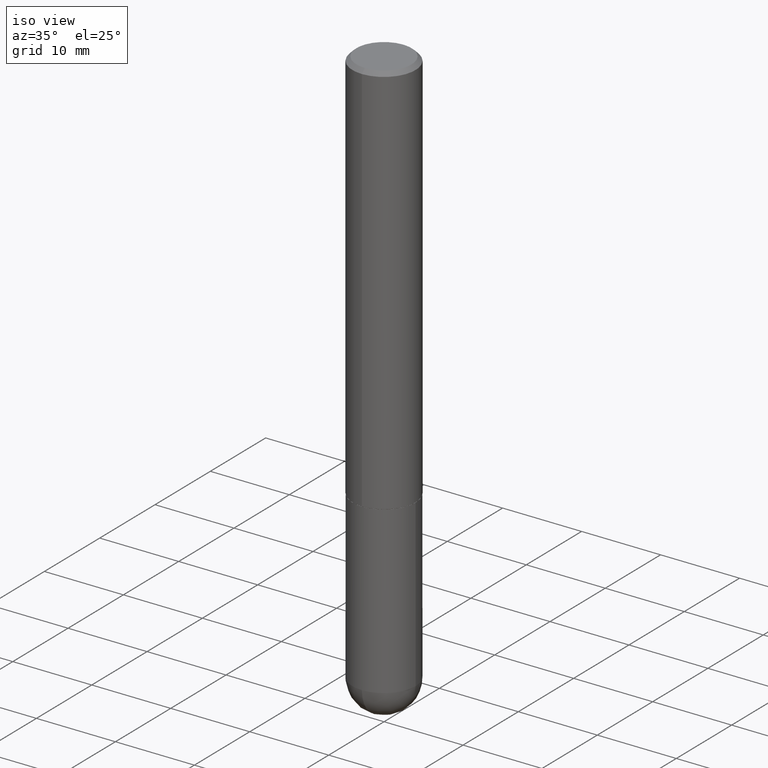
[diagram: clean part render]
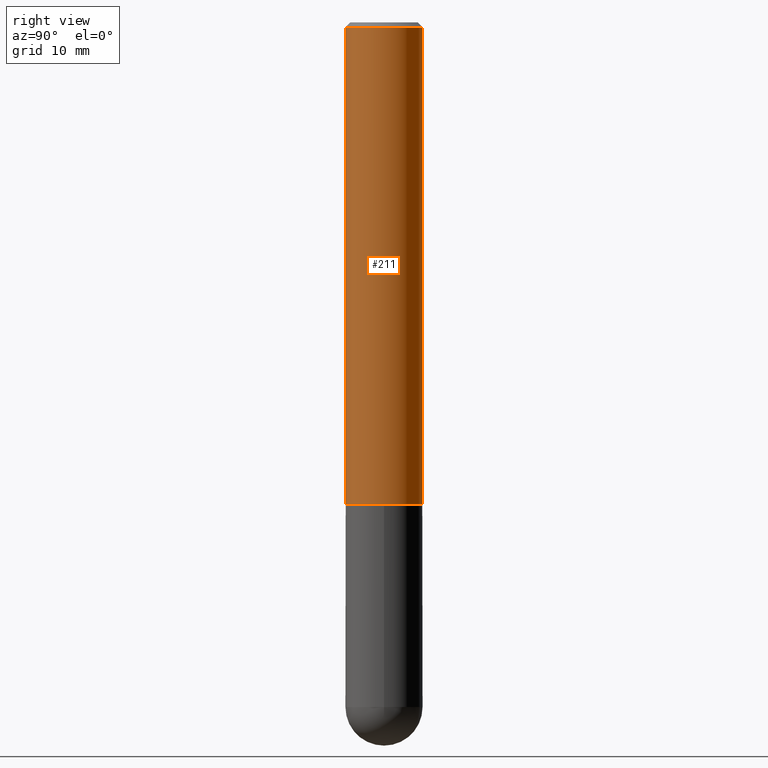
[diagram: tour spotlight — one face highlighted and labeled with its STEP entity id]
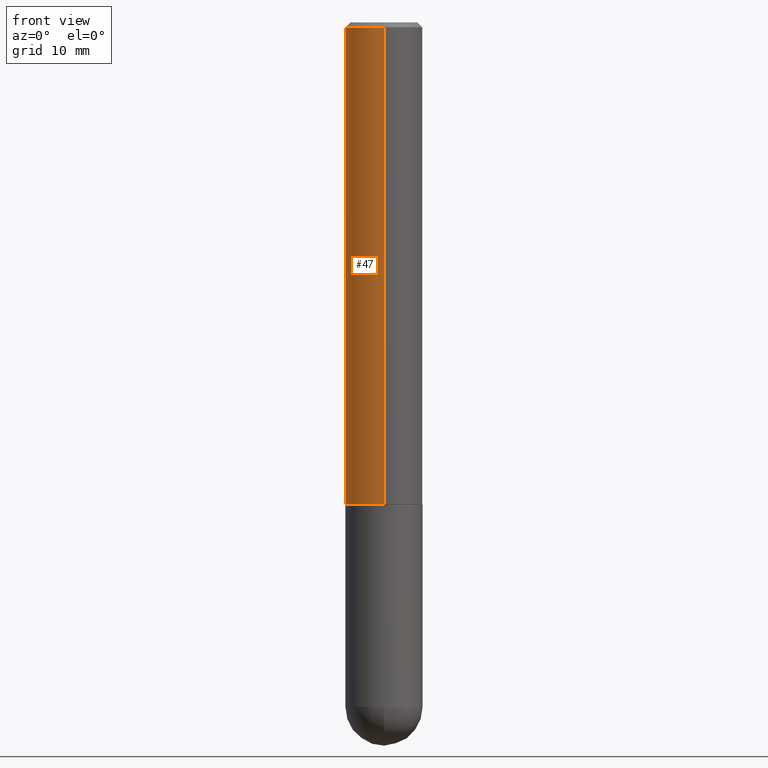
[diagram: tour spotlight — one face highlighted and labeled with its STEP entity id]
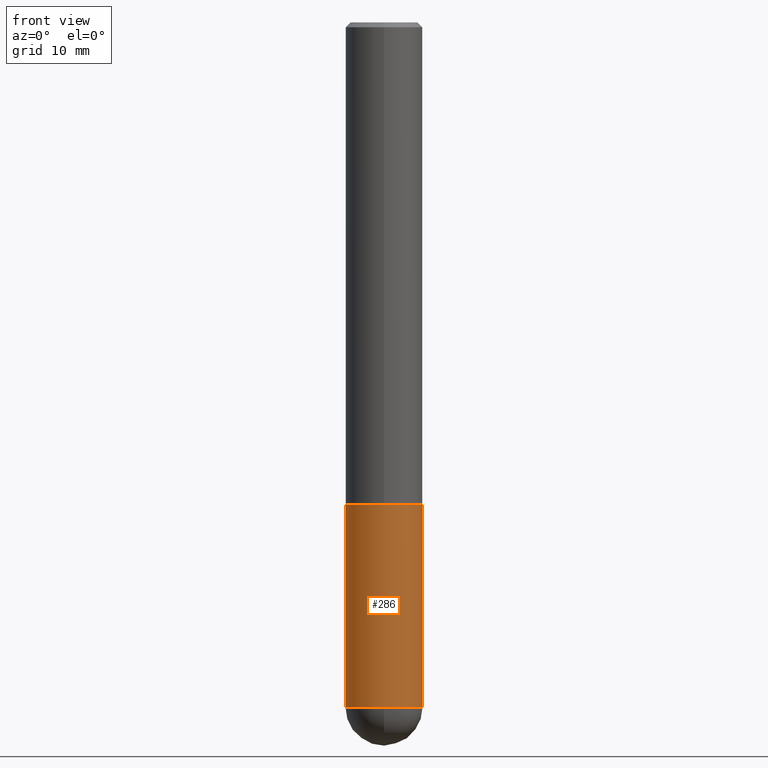
[diagram: tour spotlight — one face highlighted and labeled with its STEP entity id]
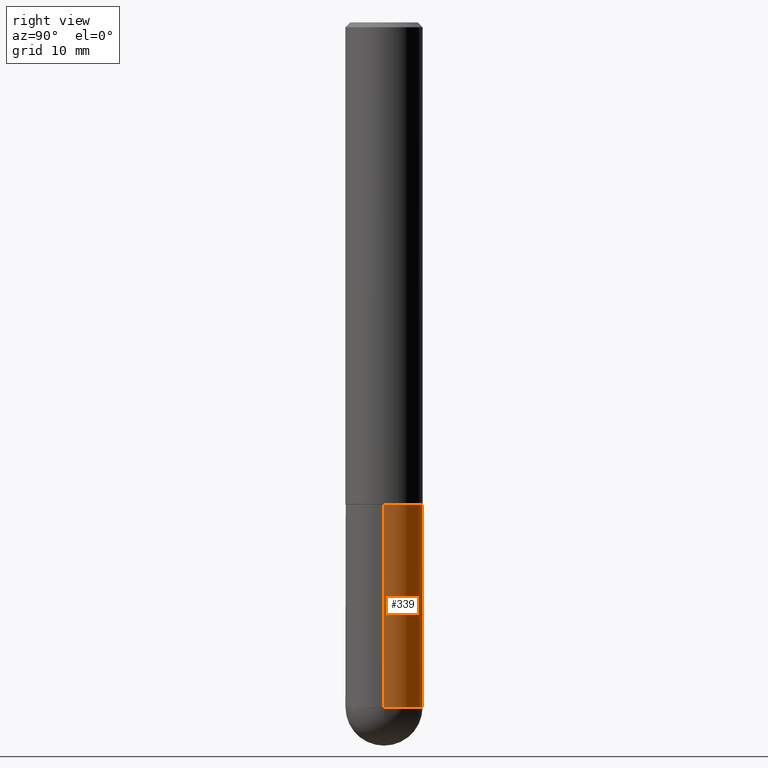
[diagram: tour spotlight — one face highlighted and labeled with its STEP entity id]
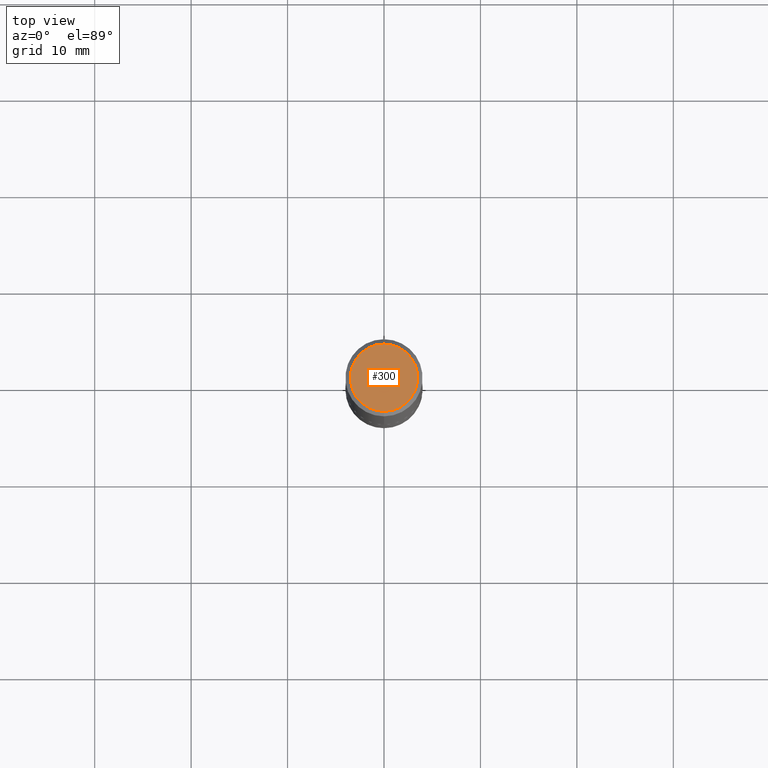
[diagram: tour spotlight — one face highlighted and labeled with its STEP entity id]
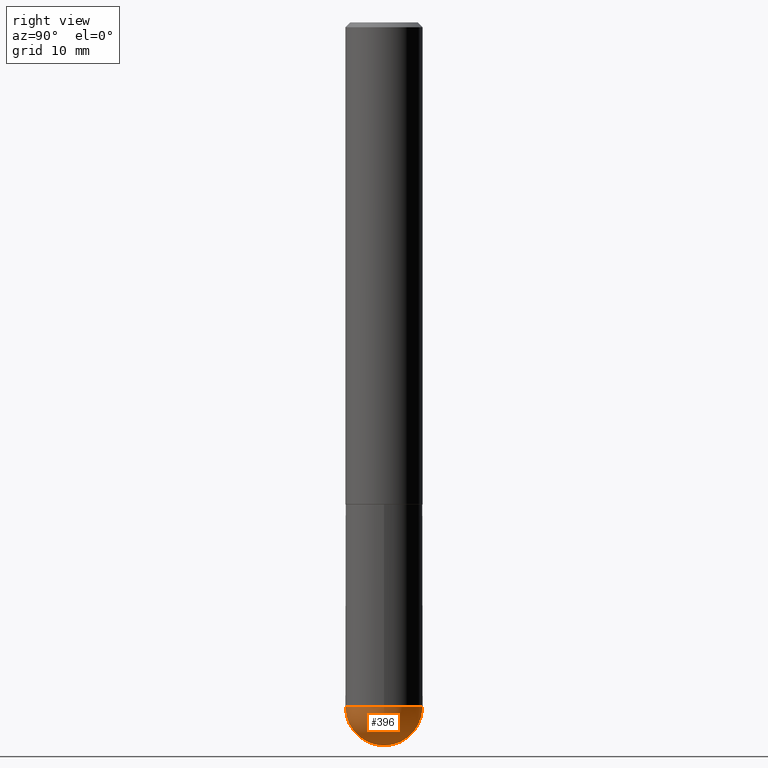
[diagram: tour spotlight — one face highlighted and labeled with its STEP entity id]
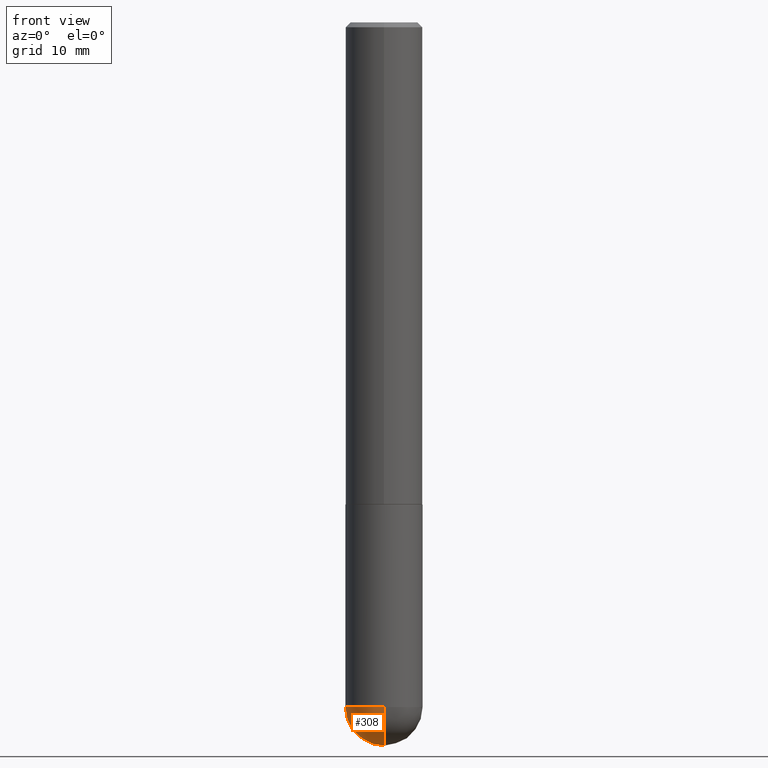
[diagram: tour spotlight — one face highlighted and labeled with its STEP entity id]
A machine part: a face-by-face anatomy tour. The part has 13 B-rep faces; the first image is the clean iso view, then the 7 largest visible faces are spotlighted one at a time (largest first), each with its STEP entity span.

Face 1 — right view, entity #211. In plain terms, the highlighted cylindrical surface (partial cylindrical patch) has radius 4.0005 mm, axis along (-0, 0, 1).
Definition (entity closure, byte-faithful):
#7 = CARTESIAN_POINT ( 'NONE',  ( -1.080528434649015385E-15, -0.1575000000000000289, -0.01999999999999948000 ) ) ;
#10 = EDGE_CURVE ( 'NONE', #254, #408, #122, .T. ) ;
#11 = DIRECTION ( 'NONE',  ( -6.982962677686265922E-15, -1.000000000000000000, 3.469013325287948560E-15 ) ) ;
#18 = FACE_OUTER_BOUND ( 'NONE', #290, .T. ) ;
#25 = CARTESIAN_POINT ( 'NONE',  ( -1.099816621735540149E-15, -0.1575000000000071065, -1.967499999999999138 ) ) ;
#40 = CARTESIAN_POINT ( 'NONE',  ( 4.819090409256129249E-29, -6.858562176490512022E-15, -1.967499999999999805 ) ) ;
#54 = LINE ( 'NONE', #243, #236 ) ;
#55 = AXIS2_PLACEMENT_3D ( 'NONE', #40, #268, #11 ) ;
#58 = CARTESIAN_POINT ( 'NONE',  ( 4.898694189841054360E-31, -6.971854817271180342E-17, -0.02000000000000003164 ) ) ;
#74 = AXIS2_PLACEMENT_3D ( 'NONE', #213, #277, #145 ) ;
#122 = CIRCLE ( 'NONE', #55, 0.1575000000000002232 ) ;
#127 = VECTOR ( 'NONE', #402, 39.37007874015748143 ) ;
#131 = ORIENTED_EDGE ( 'NONE', *, *, #293, .F. ) ;
#133 = VERTEX_POINT ( 'NONE', #7 ) ;
#145 = DIRECTION ( 'NONE',  ( -6.982962677686265922E-15, -1.000000000000000000, 3.485927408635584895E-15 ) ) ;
#147 = LINE ( 'NONE', #183, #127 ) ;
#164 = DIRECTION ( 'NONE',  ( -6.982962677686265922E-15, -1.000000000000000000, 3.496114991891766760E-15 ) ) ;
#183 = CARTESIAN_POINT ( 'NONE',  ( 1.119104808822158195E-15, 0.1575000000000000844, -5.490335668601049435E-16 ) ) ;
#189 = ORIENTED_EDGE ( 'NONE', *, *, #10, .T. ) ;
#211 = ADVANCED_FACE ( 'NONE', ( #18 ), #342, .T. ) ;
#213 = CARTESIAN_POINT ( 'NONE',  ( 0.000000000000000000, 0.000000000000000000, 0.000000000000000000 ) ) ;
#236 = VECTOR ( 'NONE', #349, 39.37007874015748143 ) ;
#238 = AXIS2_PLACEMENT_3D ( 'NONE', #58, #288, #164 ) ;
#243 = CARTESIAN_POINT ( 'NONE',  ( -1.099816621735587480E-15, -0.1575000000000000844, 5.490335668601049435E-16 ) ) ;
#247 = EDGE_CURVE ( 'NONE', #408, #287, #147, .T. ) ;
#254 = VERTEX_POINT ( 'NONE', #25 ) ;
#261 = ORIENTED_EDGE ( 'NONE', *, *, #247, .T. ) ;
#268 = DIRECTION ( 'NONE',  ( -2.449347094920523449E-29, 3.485927408635585290E-15, 1.000000000000000000 ) ) ;
#269 = CIRCLE ( 'NONE', #238, 0.1574999999999999456 ) ;
#277 = DIRECTION ( 'NONE',  ( -2.449347094920523449E-29, 3.485927408635585290E-15, 1.000000000000000000 ) ) ;
#279 = CARTESIAN_POINT ( 'NONE',  ( 1.099816621735586889E-15, 0.1574999999999998901, -0.02000000000000057981 ) ) ;
#287 = VERTEX_POINT ( 'NONE', #279 ) ;
#288 = DIRECTION ( 'NONE',  ( -2.449347094920523449E-29, 3.485927408635585290E-15, 1.000000000000000000 ) ) ;
#290 = EDGE_LOOP ( 'NONE', ( #189, #261, #292, #131 ) ) ;
#292 = ORIENTED_EDGE ( 'NONE', *, *, #365, .F. ) ;
#293 = EDGE_CURVE ( 'NONE', #254, #133, #54, .T. ) ;
#334 = CARTESIAN_POINT ( 'NONE',  ( 1.119104808822183241E-15, 0.1574999999999933675, -1.967500000000000249 ) ) ;
#342 = CYLINDRICAL_SURFACE ( 'NONE', #74, 0.1575000000000000844 ) ;
#349 = DIRECTION ( 'NONE',  ( -2.449347094920523449E-29, 3.485927408635585290E-15, 1.000000000000000000 ) ) ;
#365 = EDGE_CURVE ( 'NONE', #133, #287, #269, .T. ) ;
#402 = DIRECTION ( 'NONE',  ( -2.449347094920523449E-29, 3.485927408635585290E-15, 1.000000000000000000 ) ) ;
#408 = VERTEX_POINT ( 'NONE', #334 ) ;

Face 2 — front view, entity #47. In plain terms, the highlighted cylindrical surface (partial cylindrical patch) has radius 4.0005 mm, axis along (-0, 0, 1).
Definition (entity closure, byte-faithful):
#7 = CARTESIAN_POINT ( 'NONE',  ( -1.080528434649015385E-15, -0.1575000000000000289, -0.01999999999999948000 ) ) ;
#25 = CARTESIAN_POINT ( 'NONE',  ( -1.099816621735540149E-15, -0.1575000000000071065, -1.967499999999999138 ) ) ;
#45 = EDGE_LOOP ( 'NONE', ( #227, #224, #230, #99 ) ) ;
#47 = ADVANCED_FACE ( 'NONE', ( #70 ), #270, .T. ) ;
#54 = LINE ( 'NONE', #243, #236 ) ;
#70 = FACE_OUTER_BOUND ( 'NONE', #45, .T. ) ;
#76 = CARTESIAN_POINT ( 'NONE',  ( 4.819090409256129249E-29, -6.858562176490512022E-15, -1.967499999999999805 ) ) ;
#81 = AXIS2_PLACEMENT_3D ( 'NONE', #76, #150, #114 ) ;
#85 = DIRECTION ( 'NONE',  ( -6.982962677686265922E-15, -1.000000000000000000, 3.496114991891766760E-15 ) ) ;
#95 = AXIS2_PLACEMENT_3D ( 'NONE', #301, #297, #111 ) ;
#99 = ORIENTED_EDGE ( 'NONE', *, *, #280, .F. ) ;
#111 = DIRECTION ( 'NONE',  ( -6.982962677686265922E-15, -1.000000000000000000, 3.485927408635584895E-15 ) ) ;
#114 = DIRECTION ( 'NONE',  ( -6.982962677686265922E-15, -1.000000000000000000, 3.469013325287948560E-15 ) ) ;
#127 = VECTOR ( 'NONE', #402, 39.37007874015748143 ) ;
#133 = VERTEX_POINT ( 'NONE', #7 ) ;
#147 = LINE ( 'NONE', #183, #127 ) ;
#150 = DIRECTION ( 'NONE',  ( -2.449347094920523449E-29, 3.485927408635585290E-15, 1.000000000000000000 ) ) ;
#182 = AXIS2_PLACEMENT_3D ( 'NONE', #376, #378, #85 ) ;
#183 = CARTESIAN_POINT ( 'NONE',  ( 1.119104808822158195E-15, 0.1575000000000000844, -5.490335668601049435E-16 ) ) ;
#203 = EDGE_CURVE ( 'NONE', #408, #254, #265, .T. ) ;
#224 = ORIENTED_EDGE ( 'NONE', *, *, #203, .T. ) ;
#227 = ORIENTED_EDGE ( 'NONE', *, *, #247, .F. ) ;
#230 = ORIENTED_EDGE ( 'NONE', *, *, #293, .T. ) ;
#236 = VECTOR ( 'NONE', #349, 39.37007874015748143 ) ;
#243 = CARTESIAN_POINT ( 'NONE',  ( -1.099816621735587480E-15, -0.1575000000000000844, 5.490335668601049435E-16 ) ) ;
#247 = EDGE_CURVE ( 'NONE', #408, #287, #147, .T. ) ;
#254 = VERTEX_POINT ( 'NONE', #25 ) ;
#255 = CIRCLE ( 'NONE', #182, 0.1574999999999999456 ) ;
#265 = CIRCLE ( 'NONE', #81, 0.1575000000000002232 ) ;
#270 = CYLINDRICAL_SURFACE ( 'NONE', #95, 0.1575000000000000844 ) ;
#279 = CARTESIAN_POINT ( 'NONE',  ( 1.099816621735586889E-15, 0.1574999999999998901, -0.02000000000000057981 ) ) ;
#280 = EDGE_CURVE ( 'NONE', #287, #133, #255, .T. ) ;
#287 = VERTEX_POINT ( 'NONE', #279 ) ;
#293 = EDGE_CURVE ( 'NONE', #254, #133, #54, .T. ) ;
#297 = DIRECTION ( 'NONE',  ( -2.449347094920523449E-29, 3.485927408635585290E-15, 1.000000000000000000 ) ) ;
#301 = CARTESIAN_POINT ( 'NONE',  ( 0.000000000000000000, 0.000000000000000000, 0.000000000000000000 ) ) ;
#334 = CARTESIAN_POINT ( 'NONE',  ( 1.119104808822183241E-15, 0.1574999999999933675, -1.967500000000000249 ) ) ;
#349 = DIRECTION ( 'NONE',  ( -2.449347094920523449E-29, 3.485927408635585290E-15, 1.000000000000000000 ) ) ;
#376 = CARTESIAN_POINT ( 'NONE',  ( 4.898694189841054360E-31, -6.971854817271180342E-17, -0.02000000000000003164 ) ) ;
#378 = DIRECTION ( 'NONE',  ( -2.449347094920523449E-29, 3.485927408635585290E-15, 1.000000000000000000 ) ) ;
#402 = DIRECTION ( 'NONE',  ( -2.449347094920523449E-29, 3.485927408635585290E-15, 1.000000000000000000 ) ) ;
#408 = VERTEX_POINT ( 'NONE', #334 ) ;

Face 3 — front view, entity #286. In plain terms, the highlighted cylindrical surface (partial cylindrical patch) has radius 4.0005 mm, axis along (-0, 0, 1).
Definition (entity closure, byte-faithful):
#19 = CARTESIAN_POINT ( 'NONE',  ( -0.1575000000000000011, 1.119104808822157801E-15, -7.747322767151475583E-30 ) ) ;
#27 = ORIENTED_EDGE ( 'NONE', *, *, #129, .T. ) ;
#30 = ORIENTED_EDGE ( 'NONE', *, *, #83, .T. ) ;
#38 = DIRECTION ( 'NONE',  ( -2.445468806185136877E-29, 3.491481338843145188E-15, 1.000000000000000000 ) ) ;
#43 = DIRECTION ( 'NONE',  ( -2.445468806185136597E-29, 3.491481338843145583E-15, 1.000000000000000000 ) ) ;
#50 = DIRECTION ( 'NONE',  ( -2.445468806185136597E-29, 3.491481338843145583E-15, 1.000000000000000000 ) ) ;
#60 = DIRECTION ( 'NONE',  ( 1.000000000000000000, -6.982962677686261977E-15, 0.000000000000000000 ) ) ;
#62 = VERTEX_POINT ( 'NONE', #337 ) ;
#65 = ORIENTED_EDGE ( 'NONE', *, *, #375, .T. ) ;
#67 = AXIS2_PLACEMENT_3D ( 'NONE', #232, #364, #178 ) ;
#68 = CARTESIAN_POINT ( 'NONE',  ( 6.835818953929311707E-29, -9.759737786468243605E-15, -2.795299999999999674 ) ) ;
#75 = CARTESIAN_POINT ( 'NONE',  ( -0.1575000000000000011, -7.197254592168330052E-15, -1.968499999999999694 ) ) ;
#79 = DIRECTION ( 'NONE',  ( 1.000000000000000000, -6.982962677686265922E-15, 4.876176775795935232E-29 ) ) ;
#83 = EDGE_CURVE ( 'NONE', #62, #264, #391, .T. ) ;
#87 = DIRECTION ( 'NONE',  ( -2.445468806185136597E-29, 3.491481338843145583E-15, 1.000000000000000000 ) ) ;
#91 = VERTEX_POINT ( 'NONE', #75 ) ;
#96 = VERTEX_POINT ( 'NONE', #304 ) ;
#113 = CARTESIAN_POINT ( 'NONE',  ( -1.119104808822091931E-15, -0.1575000000000101319, -2.795299999999998786 ) ) ;
#120 = DIRECTION ( 'NONE',  ( -2.445468806185136877E-29, 3.491481338843145188E-15, 1.000000000000000000 ) ) ;
#126 = VERTEX_POINT ( 'NONE', #399 ) ;
#128 = ORIENTED_EDGE ( 'NONE', *, *, #166, .F. ) ;
#129 = EDGE_CURVE ( 'NONE', #126, #96, #361, .T. ) ;
#142 = EDGE_CURVE ( 'NONE', #91, #96, #379, .T. ) ;
#144 = VECTOR ( 'NONE', #38, 39.37007874015748143 ) ;
#146 = LINE ( 'NONE', #19, #311 ) ;
#156 = AXIS2_PLACEMENT_3D ( 'NONE', #68, #43, #390 ) ;
#166 = EDGE_CURVE ( 'NONE', #62, #91, #146, .T. ) ;
#178 = DIRECTION ( 'NONE',  ( 1.000000000000000000, -6.982962677686268288E-15, 0.000000000000000000 ) ) ;
#186 = CIRCLE ( 'NONE', #221, 0.1575000000000000011 ) ;
#195 = CARTESIAN_POINT ( 'NONE',  ( 0.1575000000000000011, -1.099816621735586889E-15, 7.679978421878598033E-30 ) ) ;
#208 = FACE_OUTER_BOUND ( 'NONE', #383, .T. ) ;
#216 = CARTESIAN_POINT ( 'NONE',  ( 0.000000000000000000, 0.000000000000000000, 0.000000000000000000 ) ) ;
#221 = AXIS2_PLACEMENT_3D ( 'NONE', #380, #87, #60 ) ;
#232 = CARTESIAN_POINT ( 'NONE',  ( 4.813905344975440714E-29, -6.872981015512730918E-15, -1.968499999999999694 ) ) ;
#235 = ORIENTED_EDGE ( 'NONE', *, *, #142, .F. ) ;
#244 = CYLINDRICAL_SURFACE ( 'NONE', #291, 0.1575000000000000011 ) ;
#264 = VERTEX_POINT ( 'NONE', #113 ) ;
#286 = ADVANCED_FACE ( 'NONE', ( #208 ), #244, .T. ) ;
#291 = AXIS2_PLACEMENT_3D ( 'NONE', #216, #50, #79 ) ;
#304 = CARTESIAN_POINT ( 'NONE',  ( 0.1575000000000000011, -7.972797637248318399E-15, -1.968499999999999694 ) ) ;
#311 = VECTOR ( 'NONE', #120, 39.37007874015748143 ) ;
#337 = CARTESIAN_POINT ( 'NONE',  ( -0.1575000000000000011, -7.197254592168330052E-15, -2.795299999999999674 ) ) ;
#361 = LINE ( 'NONE', #195, #144 ) ;
#364 = DIRECTION ( 'NONE',  ( -2.445468806185136597E-29, 3.491481338843145583E-15, 1.000000000000000000 ) ) ;
#375 = EDGE_CURVE ( 'NONE', #264, #126, #186, .T. ) ;
#379 = CIRCLE ( 'NONE', #67, 0.1575000000000000011 ) ;
#380 = CARTESIAN_POINT ( 'NONE',  ( 6.835818953929311707E-29, -9.759737786468243605E-15, -2.795299999999999674 ) ) ;
#383 = EDGE_LOOP ( 'NONE', ( #128, #30, #65, #27, #235 ) ) ;
#390 = DIRECTION ( 'NONE',  ( 1.000000000000000000, -6.982962677686261977E-15, 0.000000000000000000 ) ) ;
#391 = CIRCLE ( 'NONE', #156, 0.1575000000000000011 ) ;
#399 = CARTESIAN_POINT ( 'NONE',  ( 0.1575000000000000011, -9.416176022726072770E-15, -2.795299999999999674 ) ) ;

Face 4 — right view, entity #339. In plain terms, the highlighted cylindrical surface (partial cylindrical patch) has radius 4.0005 mm, axis along (-0, 0, 1).
Definition (entity closure, byte-faithful):
#14 = CIRCLE ( 'NONE', #107, 0.1575000000000000011 ) ;
#19 = CARTESIAN_POINT ( 'NONE',  ( -0.1575000000000000011, 1.119104808822157801E-15, -7.747322767151475583E-30 ) ) ;
#31 = DIRECTION ( 'NONE',  ( -2.445468806185136597E-29, 3.491481338843145583E-15, 1.000000000000000000 ) ) ;
#32 = AXIS2_PLACEMENT_3D ( 'NONE', #326, #31, #158 ) ;
#38 = DIRECTION ( 'NONE',  ( -2.445468806185136877E-29, 3.491481338843145188E-15, 1.000000000000000000 ) ) ;
#62 = VERTEX_POINT ( 'NONE', #337 ) ;
#73 = CARTESIAN_POINT ( 'NONE',  ( 4.813905344975440714E-29, -6.872981015512730918E-15, -1.968499999999999694 ) ) ;
#75 = CARTESIAN_POINT ( 'NONE',  ( -0.1575000000000000011, -7.197254592168330052E-15, -1.968499999999999694 ) ) ;
#89 = DIRECTION ( 'NONE',  ( -2.445468806185136597E-29, 3.491481338843145583E-15, 1.000000000000000000 ) ) ;
#91 = VERTEX_POINT ( 'NONE', #75 ) ;
#96 = VERTEX_POINT ( 'NONE', #304 ) ;
#97 = EDGE_CURVE ( 'NONE', #96, #91, #162, .T. ) ;
#107 = AXIS2_PLACEMENT_3D ( 'NONE', #231, #89, #296 ) ;
#120 = DIRECTION ( 'NONE',  ( -2.445468806185136877E-29, 3.491481338843145188E-15, 1.000000000000000000 ) ) ;
#123 = EDGE_CURVE ( 'NONE', #201, #62, #407, .T. ) ;
#124 = EDGE_LOOP ( 'NONE', ( #138, #358, #253, #193, #283 ) ) ;
#126 = VERTEX_POINT ( 'NONE', #399 ) ;
#129 = EDGE_CURVE ( 'NONE', #126, #96, #361, .T. ) ;
#138 = ORIENTED_EDGE ( 'NONE', *, *, #123, .T. ) ;
#143 = DIRECTION ( 'NONE',  ( -2.445468806185136597E-29, 3.491481338843145583E-15, 1.000000000000000000 ) ) ;
#144 = VECTOR ( 'NONE', #38, 39.37007874015748143 ) ;
#146 = LINE ( 'NONE', #19, #311 ) ;
#155 = CYLINDRICAL_SURFACE ( 'NONE', #32, 0.1575000000000000011 ) ;
#158 = DIRECTION ( 'NONE',  ( 1.000000000000000000, -6.982962677686265922E-15, 4.876176775795935232E-29 ) ) ;
#162 = CIRCLE ( 'NONE', #219, 0.1575000000000000011 ) ;
#165 = DIRECTION ( 'NONE',  ( -2.445468806185136597E-29, 3.491481338843145583E-15, 1.000000000000000000 ) ) ;
#166 = EDGE_CURVE ( 'NONE', #62, #91, #146, .T. ) ;
#193 = ORIENTED_EDGE ( 'NONE', *, *, #129, .F. ) ;
#195 = CARTESIAN_POINT ( 'NONE',  ( 0.1575000000000000011, -1.099816621735586889E-15, 7.679978421878598033E-30 ) ) ;
#201 = VERTEX_POINT ( 'NONE', #400 ) ;
#205 = DIRECTION ( 'NONE',  ( 1.000000000000000000, -6.982962677686268288E-15, 0.000000000000000000 ) ) ;
#219 = AXIS2_PLACEMENT_3D ( 'NONE', #73, #165, #205 ) ;
#220 = FACE_OUTER_BOUND ( 'NONE', #124, .T. ) ;
#231 = CARTESIAN_POINT ( 'NONE',  ( 6.835818953929311707E-29, -9.759737786468243605E-15, -2.795299999999999674 ) ) ;
#253 = ORIENTED_EDGE ( 'NONE', *, *, #97, .F. ) ;
#272 = AXIS2_PLACEMENT_3D ( 'NONE', #332, #143, #273 ) ;
#273 = DIRECTION ( 'NONE',  ( 1.000000000000000000, -6.982962677686261977E-15, 0.000000000000000000 ) ) ;
#283 = ORIENTED_EDGE ( 'NONE', *, *, #406, .T. ) ;
#296 = DIRECTION ( 'NONE',  ( 1.000000000000000000, -6.982962677686261977E-15, 0.000000000000000000 ) ) ;
#304 = CARTESIAN_POINT ( 'NONE',  ( 0.1575000000000000011, -7.972797637248318399E-15, -1.968499999999999694 ) ) ;
#311 = VECTOR ( 'NONE', #120, 39.37007874015748143 ) ;
#326 = CARTESIAN_POINT ( 'NONE',  ( 0.000000000000000000, 0.000000000000000000, 0.000000000000000000 ) ) ;
#332 = CARTESIAN_POINT ( 'NONE',  ( 6.835818953929311707E-29, -9.759737786468243605E-15, -2.795299999999999674 ) ) ;
#337 = CARTESIAN_POINT ( 'NONE',  ( -0.1575000000000000011, -7.197254592168330052E-15, -2.795299999999999674 ) ) ;
#339 = ADVANCED_FACE ( 'NONE', ( #220 ), #155, .T. ) ;
#358 = ORIENTED_EDGE ( 'NONE', *, *, #166, .T. ) ;
#361 = LINE ( 'NONE', #195, #144 ) ;
#399 = CARTESIAN_POINT ( 'NONE',  ( 0.1575000000000000011, -9.416176022726072770E-15, -2.795299999999999674 ) ) ;
#400 = CARTESIAN_POINT ( 'NONE',  ( 1.099816621735654731E-15, 0.1574999999999901201, -2.795300000000000118 ) ) ;
#406 = EDGE_CURVE ( 'NONE', #126, #201, #14, .T. ) ;
#407 = CIRCLE ( 'NONE', #272, 0.1575000000000000011 ) ;

Face 5 — top view, entity #300. In plain terms, the highlighted planar face has unit normal (0, -0, -1).
Definition (entity closure, byte-faithful):
#2 = AXIS2_PLACEMENT_3D ( 'NONE', #135, #239, #338 ) ;
#51 = DIRECTION ( 'NONE',  ( 6.982962677686265922E-15, 1.000000000000000000, -3.485927408635585290E-15 ) ) ;
#64 = EDGE_CURVE ( 'NONE', #228, #198, #330, .T. ) ;
#80 = CARTESIAN_POINT ( 'NONE',  ( 9.601573681818595033E-16, 0.1374999999999997058, -3.473729641960488965E-16 ) ) ;
#82 = PLANE ( 'NONE',  #369 ) ;
#135 = CARTESIAN_POINT ( 'NONE',  ( -6.463437757324325613E-45, 9.198808482061246702E-31, 2.638841089826859233E-16 ) ) ;
#154 = ORIENTED_EDGE ( 'NONE', *, *, #64, .T. ) ;
#197 = DIRECTION ( 'NONE',  ( -6.982962677686265922E-15, -1.000000000000000000, 3.485927408635585290E-15 ) ) ;
#198 = VERTEX_POINT ( 'NONE', #209 ) ;
#209 = CARTESIAN_POINT ( 'NONE',  ( 1.029986994958723196E-15, 0.1374999999999997058, -2.154309097047059349E-16 ) ) ;
#228 = VERTEX_POINT ( 'NONE', #312 ) ;
#239 = DIRECTION ( 'NONE',  ( -2.449347094920523449E-29, 3.485927408635585290E-15, 1.000000000000000000 ) ) ;
#300 = ADVANCED_FACE ( 'NONE', ( #403 ), #82, .F. ) ;
#305 = AXIS2_PLACEMENT_3D ( 'NONE', #354, #389, #197 ) ;
#312 = CARTESIAN_POINT ( 'NONE',  ( -1.011923454671299265E-15, -0.1374999999999997058, 7.431991276700778061E-16 ) ) ;
#330 = CIRCLE ( 'NONE', #2, 0.1374999999999997058 ) ;
#338 = DIRECTION ( 'NONE',  ( -6.982962677686265922E-15, -1.000000000000000000, 3.485927408635585290E-15 ) ) ;
#353 = EDGE_CURVE ( 'NONE', #198, #228, #401, .T. ) ;
#354 = CARTESIAN_POINT ( 'NONE',  ( -6.463437757324325613E-45, 9.198808482061246702E-31, 2.638841089826859233E-16 ) ) ;
#357 = EDGE_LOOP ( 'NONE', ( #381, #154 ) ) ;
#369 = AXIS2_PLACEMENT_3D ( 'NONE', #80, #377, #51 ) ;
#377 = DIRECTION ( 'NONE',  ( 2.449347094920523169E-29, -3.485927408635585290E-15, -1.000000000000000000 ) ) ;
#381 = ORIENTED_EDGE ( 'NONE', *, *, #353, .T. ) ;
#389 = DIRECTION ( 'NONE',  ( -2.449347094920523449E-29, 3.485927408635585290E-15, 1.000000000000000000 ) ) ;
#401 = CIRCLE ( 'NONE', #305, 0.1374999999999997058 ) ;
#403 = FACE_OUTER_BOUND ( 'NONE', #357, .T. ) ;

Face 6 — right view, entity #396. In plain terms, the highlighted spherical surface has radius 4.0005 mm.
Definition (entity closure, byte-faithful):
#4 = ORIENTED_EDGE ( 'NONE', *, *, #24, .F. ) ;
#14 = CIRCLE ( 'NONE', #107, 0.1575000000000000011 ) ;
#24 = EDGE_CURVE ( 'NONE', #157, #264, #350, .T. ) ;
#34 = ORIENTED_EDGE ( 'NONE', *, *, #406, .F. ) ;
#36 = DIRECTION ( 'NONE',  ( -1.000000000000000000, 6.982962677686265922E-15, -4.883557194083112901E-29 ) ) ;
#59 = ORIENTED_EDGE ( 'NONE', *, *, #218, .T. ) ;
#60 = DIRECTION ( 'NONE',  ( 1.000000000000000000, -6.982962677686261977E-15, 0.000000000000000000 ) ) ;
#66 = DIRECTION ( 'NONE',  ( 6.982962677686265922E-15, 1.000000000000000000, -3.469013325287946588E-15 ) ) ;
#87 = DIRECTION ( 'NONE',  ( -2.445468806185136597E-29, 3.491481338843145583E-15, 1.000000000000000000 ) ) ;
#89 = DIRECTION ( 'NONE',  ( -2.445468806185136597E-29, 3.491481338843145583E-15, 1.000000000000000000 ) ) ;
#100 = CARTESIAN_POINT ( 'NONE',  ( 6.504699176015425459E-29, -1.023392015460829390E-14, -2.795299999999999674 ) ) ;
#107 = AXIS2_PLACEMENT_3D ( 'NONE', #231, #89, #296 ) ;
#108 = DIRECTION ( 'NONE',  ( -7.105427357601000281E-15, -1.000000000000000000, 0.000000000000000000 ) ) ;
#112 = DIRECTION ( 'NONE',  ( 6.982962677686265133E-15, 1.000000000000000000, 0.000000000000000000 ) ) ;
#113 = CARTESIAN_POINT ( 'NONE',  ( -1.119104808822091931E-15, -0.1575000000000101319, -2.795299999999998786 ) ) ;
#126 = VERTEX_POINT ( 'NONE', #399 ) ;
#157 = VERTEX_POINT ( 'NONE', #404 ) ;
#185 = AXIS2_PLACEMENT_3D ( 'NONE', #373, #394, #108 ) ;
#186 = CIRCLE ( 'NONE', #221, 0.1575000000000000011 ) ;
#190 = FACE_OUTER_BOUND ( 'NONE', #359, .T. ) ;
#194 = ORIENTED_EDGE ( 'NONE', *, *, #375, .F. ) ;
#200 = AXIS2_PLACEMENT_3D ( 'NONE', #309, #346, #112 ) ;
#201 = VERTEX_POINT ( 'NONE', #400 ) ;
#218 = EDGE_CURVE ( 'NONE', #157, #201, #259, .T. ) ;
#221 = AXIS2_PLACEMENT_3D ( 'NONE', #380, #87, #60 ) ;
#231 = CARTESIAN_POINT ( 'NONE',  ( 6.835818953929311707E-29, -9.759737786468243605E-15, -2.795299999999999674 ) ) ;
#241 = AXIS2_PLACEMENT_3D ( 'NONE', #100, #36, #66 ) ;
#259 = CIRCLE ( 'NONE', #200, 0.1575000000000003064 ) ;
#264 = VERTEX_POINT ( 'NONE', #113 ) ;
#296 = DIRECTION ( 'NONE',  ( 1.000000000000000000, -6.982962677686261977E-15, 0.000000000000000000 ) ) ;
#309 = CARTESIAN_POINT ( 'NONE',  ( 6.504699176015425459E-29, -1.023392015460829390E-14, -2.795299999999999674 ) ) ;
#323 = SPHERICAL_SURFACE ( 'NONE', #241, 0.1575000000000003064 ) ;
#346 = DIRECTION ( 'NONE',  ( 1.000000000000000000, -6.982962677686265922E-15, 4.883557194083112340E-29 ) ) ;
#350 = CIRCLE ( 'NONE', #185, 0.1575000000000003064 ) ;
#359 = EDGE_LOOP ( 'NONE', ( #4, #59, #34, #194 ) ) ;
#373 = CARTESIAN_POINT ( 'NONE',  ( 6.504699176015425459E-29, -1.023392015460829390E-14, -2.795299999999999674 ) ) ;
#375 = EDGE_CURVE ( 'NONE', #264, #126, #186, .T. ) ;
#380 = CARTESIAN_POINT ( 'NONE',  ( 6.835818953929311707E-29, -9.759737786468243605E-15, -2.795299999999999674 ) ) ;
#394 = DIRECTION ( 'NONE',  ( -1.000000000000000000, 7.105427357601001070E-15, -4.926315508542082329E-29 ) ) ;
#396 = ADVANCED_FACE ( 'NONE', ( #190 ), #323, .T. ) ;
#399 = CARTESIAN_POINT ( 'NONE',  ( 0.1575000000000000011, -9.416176022726072770E-15, -2.795299999999999674 ) ) ;
#400 = CARTESIAN_POINT ( 'NONE',  ( 1.099816621735654731E-15, 0.1574999999999901201, -2.795300000000000118 ) ) ;
#404 = CARTESIAN_POINT ( 'NONE',  ( 6.896594947516873652E-29, -1.077418437193280573E-14, -2.952799999999999869 ) ) ;
#406 = EDGE_CURVE ( 'NONE', #126, #201, #14, .T. ) ;

Face 7 — front view, entity #308. In plain terms, the highlighted spherical surface has radius 4.0005 mm.
Definition (entity closure, byte-faithful):
#24 = EDGE_CURVE ( 'NONE', #157, #264, #350, .T. ) ;
#35 = ORIENTED_EDGE ( 'NONE', *, *, #123, .F. ) ;
#43 = DIRECTION ( 'NONE',  ( -2.445468806185136597E-29, 3.491481338843145583E-15, 1.000000000000000000 ) ) ;
#62 = VERTEX_POINT ( 'NONE', #337 ) ;
#68 = CARTESIAN_POINT ( 'NONE',  ( 6.835818953929311707E-29, -9.759737786468243605E-15, -2.795299999999999674 ) ) ;
#83 = EDGE_CURVE ( 'NONE', #62, #264, #391, .T. ) ;
#108 = DIRECTION ( 'NONE',  ( -7.105427357601000281E-15, -1.000000000000000000, 0.000000000000000000 ) ) ;
#112 = DIRECTION ( 'NONE',  ( 6.982962677686265133E-15, 1.000000000000000000, 0.000000000000000000 ) ) ;
#113 = CARTESIAN_POINT ( 'NONE',  ( -1.119104808822091931E-15, -0.1575000000000101319, -2.795299999999998786 ) ) ;
#123 = EDGE_CURVE ( 'NONE', #201, #62, #407, .T. ) ;
#143 = DIRECTION ( 'NONE',  ( -2.445468806185136597E-29, 3.491481338843145583E-15, 1.000000000000000000 ) ) ;
#156 = AXIS2_PLACEMENT_3D ( 'NONE', #68, #43, #390 ) ;
#157 = VERTEX_POINT ( 'NONE', #404 ) ;
#181 = SPHERICAL_SURFACE ( 'NONE', #217, 0.1575000000000003064 ) ;
#184 = DIRECTION ( 'NONE',  ( -1.000000000000000000, 6.982962677686265922E-15, -4.883557194083112901E-29 ) ) ;
#185 = AXIS2_PLACEMENT_3D ( 'NONE', #373, #394, #108 ) ;
#200 = AXIS2_PLACEMENT_3D ( 'NONE', #309, #346, #112 ) ;
#201 = VERTEX_POINT ( 'NONE', #400 ) ;
#217 = AXIS2_PLACEMENT_3D ( 'NONE', #282, #184, #318 ) ;
#218 = EDGE_CURVE ( 'NONE', #157, #201, #259, .T. ) ;
#259 = CIRCLE ( 'NONE', #200, 0.1575000000000003064 ) ;
#264 = VERTEX_POINT ( 'NONE', #113 ) ;
#272 = AXIS2_PLACEMENT_3D ( 'NONE', #332, #143, #273 ) ;
#273 = DIRECTION ( 'NONE',  ( 1.000000000000000000, -6.982962677686261977E-15, 0.000000000000000000 ) ) ;
#282 = CARTESIAN_POINT ( 'NONE',  ( 6.504699176015425459E-29, -1.023392015460829390E-14, -2.795299999999999674 ) ) ;
#295 = EDGE_LOOP ( 'NONE', ( #322, #386, #328, #35 ) ) ;
#308 = ADVANCED_FACE ( 'NONE', ( #341 ), #181, .T. ) ;
#309 = CARTESIAN_POINT ( 'NONE',  ( 6.504699176015425459E-29, -1.023392015460829390E-14, -2.795299999999999674 ) ) ;
#318 = DIRECTION ( 'NONE',  ( 6.982962677686265922E-15, 1.000000000000000000, -3.469013325287946588E-15 ) ) ;
#322 = ORIENTED_EDGE ( 'NONE', *, *, #218, .F. ) ;
#328 = ORIENTED_EDGE ( 'NONE', *, *, #83, .F. ) ;
#332 = CARTESIAN_POINT ( 'NONE',  ( 6.835818953929311707E-29, -9.759737786468243605E-15, -2.795299999999999674 ) ) ;
#337 = CARTESIAN_POINT ( 'NONE',  ( -0.1575000000000000011, -7.197254592168330052E-15, -2.795299999999999674 ) ) ;
#341 = FACE_OUTER_BOUND ( 'NONE', #295, .T. ) ;
#346 = DIRECTION ( 'NONE',  ( 1.000000000000000000, -6.982962677686265922E-15, 4.883557194083112340E-29 ) ) ;
#350 = CIRCLE ( 'NONE', #185, 0.1575000000000003064 ) ;
#373 = CARTESIAN_POINT ( 'NONE',  ( 6.504699176015425459E-29, -1.023392015460829390E-14, -2.795299999999999674 ) ) ;
#386 = ORIENTED_EDGE ( 'NONE', *, *, #24, .T. ) ;
#390 = DIRECTION ( 'NONE',  ( 1.000000000000000000, -6.982962677686261977E-15, 0.000000000000000000 ) ) ;
#391 = CIRCLE ( 'NONE', #156, 0.1575000000000000011 ) ;
#394 = DIRECTION ( 'NONE',  ( -1.000000000000000000, 7.105427357601001070E-15, -4.926315508542082329E-29 ) ) ;
#400 = CARTESIAN_POINT ( 'NONE',  ( 1.099816621735654731E-15, 0.1574999999999901201, -2.795300000000000118 ) ) ;
#404 = CARTESIAN_POINT ( 'NONE',  ( 6.896594947516873652E-29, -1.077418437193280573E-14, -2.952799999999999869 ) ) ;
#407 = CIRCLE ( 'NONE', #272, 0.1575000000000000011 ) ;